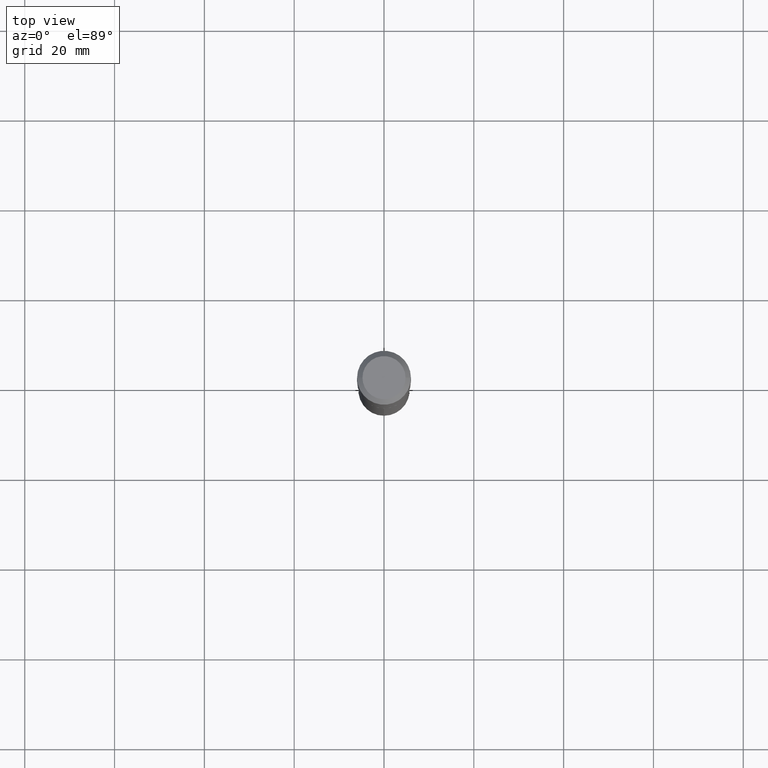
[diagram: clean part render]
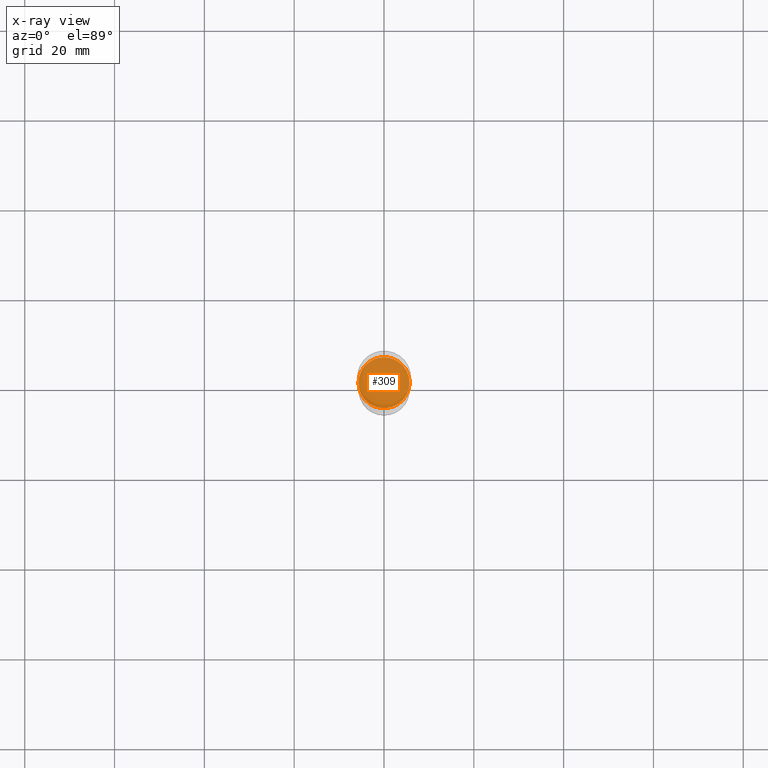
[diagram: x-ray — body ghosted, one internal face saturated and labeled with its STEP entity id]
A machine part, top view, then the same camera in x-ray: the body is ghosted and one INTERNAL B-rep face — a face not visible from any outside direction — is saturated and labeled: STEP entity #309.
In plain terms, the highlighted planar face has unit normal (-0, 0, 1).
Its self-contained STEP definition (entity closure, byte-faithful):
#6 = CARTESIAN_POINT ( 'NONE',  ( 6.354306145991461998E-29, -9.072265110850035778E-15, -2.598400000000001597 ) ) ;
#43 = CIRCLE ( 'NONE', #104, 0.2238999999999999879 ) ;
#51 = PLANE ( 'NONE',  #93 ) ;
#76 = FACE_OUTER_BOUND ( 'NONE', #136, .T. ) ;
#81 = DIRECTION ( 'NONE',  ( 1.000000000000000000, -6.982962677686269077E-15, 0.000000000000000000 ) ) ;
#93 = AXIS2_PLACEMENT_3D ( 'NONE', #398, #216, #178 ) ;
#104 = AXIS2_PLACEMENT_3D ( 'NONE', #190, #461, #301 ) ;
#110 = VERTEX_POINT ( 'NONE', #394 ) ;
#117 = ORIENTED_EDGE ( 'NONE', *, *, #163, .F. ) ;
#119 = ORIENTED_EDGE ( 'NONE', *, *, #188, .F. ) ;
#136 = EDGE_LOOP ( 'NONE', ( #117, #119 ) ) ;
#163 = EDGE_CURVE ( 'NONE', #384, #110, #43, .T. ) ;
#178 = DIRECTION ( 'NONE',  ( 1.000000000000000000, -6.982962677686265922E-15, 4.876176775795935793E-29 ) ) ;
#182 = AXIS2_PLACEMENT_3D ( 'NONE', #6, #307, #81 ) ;
#188 = EDGE_CURVE ( 'NONE', #110, #384, #246, .T. ) ;
#190 = CARTESIAN_POINT ( 'NONE',  ( 6.354306145991461998E-29, -9.072265110850035778E-15, -2.598400000000001597 ) ) ;
#216 = DIRECTION ( 'NONE',  ( -2.438088387897960049E-29, 3.491481338843145188E-15, 1.000000000000000000 ) ) ;
#246 = CIRCLE ( 'NONE', #182, 0.2238999999999999879 ) ;
#301 = DIRECTION ( 'NONE',  ( 1.000000000000000000, -6.982962677686269077E-15, 0.000000000000000000 ) ) ;
#307 = DIRECTION ( 'NONE',  ( -2.445468806185136597E-29, 3.491481338843145583E-15, 1.000000000000000000 ) ) ;
#309 = ADVANCED_FACE ( 'NONE', ( #76 ), #51, .F. ) ;
#384 = VERTEX_POINT ( 'NONE', #472 ) ;
#394 = CARTESIAN_POINT ( 'NONE',  ( -0.2238999999999999879, -7.478710698309059557E-15, -2.598400000000001597 ) ) ;
#398 = CARTESIAN_POINT ( 'NONE',  ( 1.926606415564330206E-29, -1.541298313383996512E-14, -2.598400000000001597 ) ) ;
#461 = DIRECTION ( 'NONE',  ( -2.445468806185136597E-29, 3.491481338843145583E-15, 1.000000000000000000 ) ) ;
#472 = CARTESIAN_POINT ( 'NONE',  ( 0.2238999999999999879, -1.063575045438399117E-14, -2.598400000000001597 ) ) ;